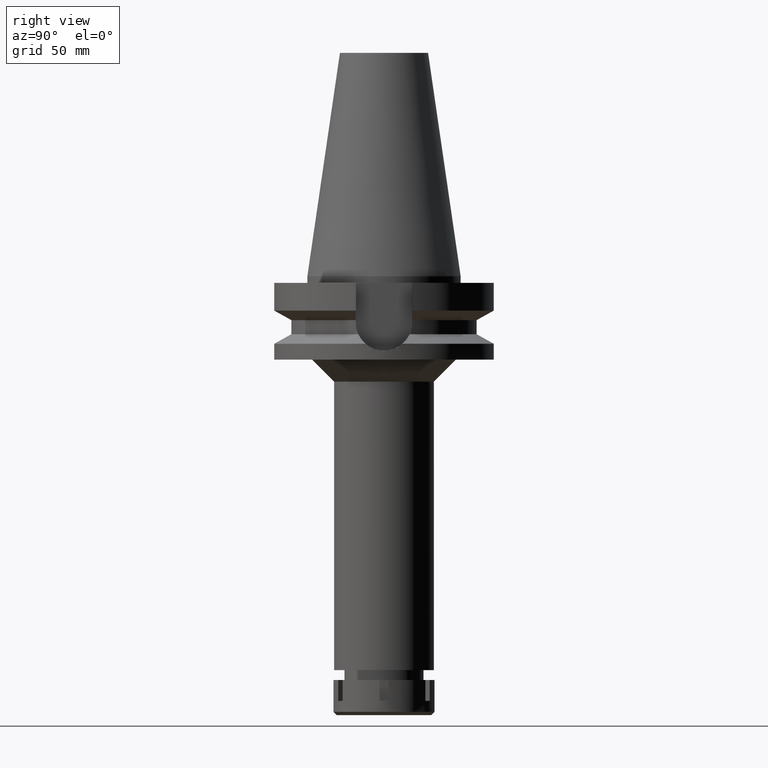
[diagram: clean part render]
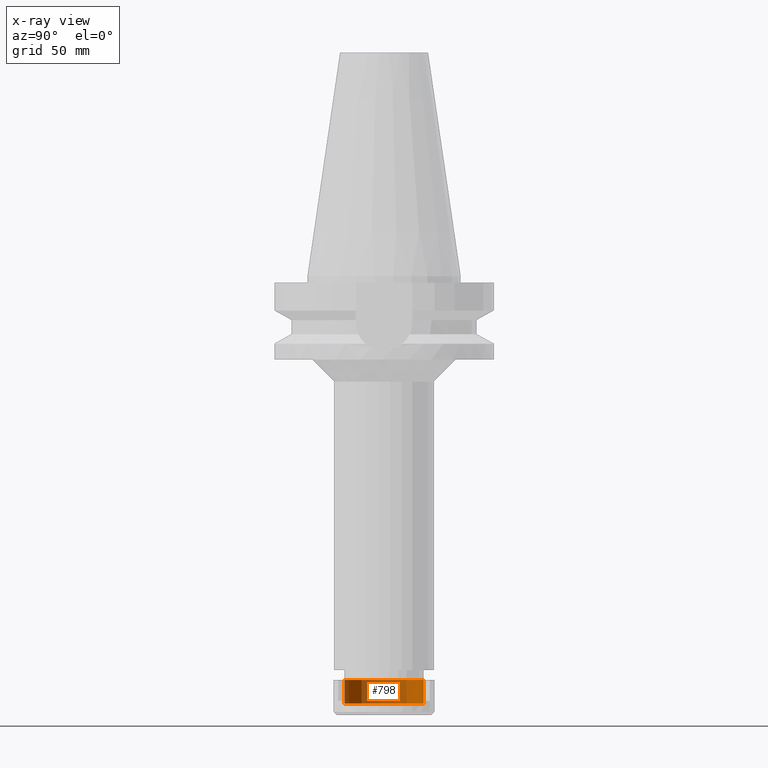
[diagram: x-ray — body ghosted, one internal face saturated and labeled with its STEP entity id]
A machine part, right view, then the same camera in x-ray: the body is ghosted and one INTERNAL B-rep face — a face not visible from any outside direction — is saturated and labeled: STEP entity #798.
In plain terms, the highlighted cylindrical surface (partial cylindrical patch) has radius 18 mm, axis along (0, 0, -1).
Its self-contained STEP definition (entity closure, byte-faithful):
#38 = DIRECTION ( 'NONE',  ( 0.0000000000000000000, 0.0000000000000000000, 1.000000000000000000 ) ) ;
#163 = ORIENTED_EDGE ( 'NONE', *, *, #3504, .T. ) ;
#302 = ORIENTED_EDGE ( 'NONE', *, *, #1189, .F. ) ;
#311 = VECTOR ( 'NONE', #3372, 1000.000000000000000 ) ;
#331 = CARTESIAN_POINT ( 'NONE',  ( 0.0000000000000000000, 0.0000000000000000000, 0.0000000000000000000 ) ) ;
#514 = CARTESIAN_POINT ( 'NONE',  ( 0.0000000000000000000, 18.00000000000000000, -10.80000000000000071 ) ) ;
#521 = EDGE_CURVE ( 'NONE', #1887, #1627, #2913, .T. ) ;
#608 = CARTESIAN_POINT ( 'NONE',  ( 0.0000000000000000000, 0.0000000000000000000, 0.0000000000000000000 ) ) ;
#610 = LINE ( 'NONE', #1688, #311 ) ;
#798 = ADVANCED_FACE ( 'NONE', ( #3143 ), #2625, .F. ) ;
#839 = EDGE_CURVE ( 'NONE', #3257, #1147, #2917, .T. ) ;
#872 = DIRECTION ( 'NONE',  ( 0.0000000000000000000, -1.000000000000000000, 0.0000000000000000000 ) ) ;
#891 = EDGE_LOOP ( 'NONE', ( #2408, #302, #892, #163 ) ) ;
#892 = ORIENTED_EDGE ( 'NONE', *, *, #521, .T. ) ;
#955 = AXIS2_PLACEMENT_3D ( 'NONE', #2042, #3479, #3192 ) ;
#1147 = VERTEX_POINT ( 'NONE', #3601 ) ;
#1163 = DIRECTION ( 'NONE',  ( 0.0000000000000000000, 0.0000000000000000000, -1.000000000000000000 ) ) ;
#1189 = EDGE_CURVE ( 'NONE', #1887, #1147, #2324, .T. ) ;
#1247 = CARTESIAN_POINT ( 'NONE',  ( 0.0000000000000000000, -18.00000000000000000, -10.80000000000000071 ) ) ;
#1291 = DIRECTION ( 'NONE',  ( 0.0000000000000000000, 1.000000000000000000, 0.0000000000000000000 ) ) ;
#1576 = CARTESIAN_POINT ( 'NONE',  ( 0.0000000000000000000, 18.00000000000000000, 0.0000000000000000000 ) ) ;
#1627 = VERTEX_POINT ( 'NONE', #514 ) ;
#1688 = CARTESIAN_POINT ( 'NONE',  ( 0.0000000000000000000, 18.00000000000000000, -10.80000000000000071 ) ) ;
#1754 = DIRECTION ( 'NONE',  ( 0.0000000000000000000, 0.0000000000000000000, 1.000000000000000000 ) ) ;
#1887 = VERTEX_POINT ( 'NONE', #1247 ) ;
#2030 = VECTOR ( 'NONE', #38, 1000.000000000000000 ) ;
#2042 = CARTESIAN_POINT ( 'NONE',  ( 0.0000000000000000000, 0.0000000000000000000, -10.80000000000000071 ) ) ;
#2324 = LINE ( 'NONE', #2859, #2030 ) ;
#2408 = ORIENTED_EDGE ( 'NONE', *, *, #839, .T. ) ;
#2625 = CYLINDRICAL_SURFACE ( 'NONE', #3517, 18.00000000000000000 ) ;
#2859 = CARTESIAN_POINT ( 'NONE',  ( 0.0000000000000000000, -18.00000000000000000, -10.80000000000000071 ) ) ;
#2913 = CIRCLE ( 'NONE', #955, 18.00000000000000000 ) ;
#2917 = CIRCLE ( 'NONE', #3158, 18.00000000000000000 ) ;
#3143 = FACE_OUTER_BOUND ( 'NONE', #891, .T. ) ;
#3158 = AXIS2_PLACEMENT_3D ( 'NONE', #608, #1754, #1291 ) ;
#3192 = DIRECTION ( 'NONE',  ( 0.0000000000000000000, -1.000000000000000000, 0.0000000000000000000 ) ) ;
#3257 = VERTEX_POINT ( 'NONE', #1576 ) ;
#3372 = DIRECTION ( 'NONE',  ( 0.0000000000000000000, 0.0000000000000000000, 1.000000000000000000 ) ) ;
#3479 = DIRECTION ( 'NONE',  ( 0.0000000000000000000, 0.0000000000000000000, -1.000000000000000000 ) ) ;
#3504 = EDGE_CURVE ( 'NONE', #1627, #3257, #610, .T. ) ;
#3517 = AXIS2_PLACEMENT_3D ( 'NONE', #331, #1163, #872 ) ;
#3601 = CARTESIAN_POINT ( 'NONE',  ( 0.0000000000000000000, -18.00000000000000000, 0.0000000000000000000 ) ) ;